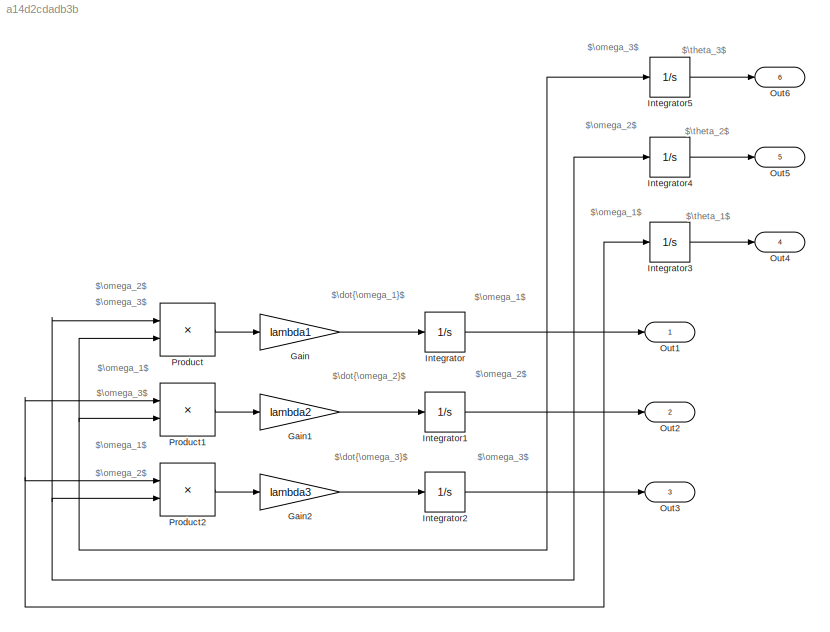
MODEL slx_a14d2cdadb3b
KIND model
CONFIG AbsTol = auto
CONFIG EnableMultiTasking = off
CONFIG FixedStep = 0.02
CONFIG MaxStep = auto
CONFIG MinStep = auto
CONFIG RelTol = 1e-3
CONFIG SampleTimeConstraint = Unconstrained
CONFIG SolverName = FixedStepAuto
CONFIG StartTime = 0.0
CONFIG StopTime = 14.0
BLOCK [Gain] Gain
  Gain = lambda1
BLOCK [Gain] Gain1
  Gain = lambda2
BLOCK [Gain] Gain2
  Gain = lambda3
BLOCK [Integrator] Integrator
  InitialCondition = omega0(1)
  Ports = [1, 1]
BLOCK [Integrator] Integrator1
  InitialCondition = omega0(2)
  Ports = [1, 1]
BLOCK [Integrator] Integrator2
  InitialCondition = omega0(3)
  Ports = [1, 1]
BLOCK [Integrator] Integrator3
  Ports = [1, 1]
BLOCK [Integrator] Integrator4
  Ports = [1, 1]
BLOCK [Integrator] Integrator5
  Ports = [1, 1]
BLOCK [Outport] Out1
  IconDisplay = Signal name
  SignalName = omega1
BLOCK [Outport] Out2
  IconDisplay = Signal name
  Port = 2
  SignalName = omega2
BLOCK [Outport] Out3
  IconDisplay = Signal name
  Port = 3
  SignalName = omega3
BLOCK [Outport] Out4
  IconDisplay = Signal name
  Port = 4
  SignalName = theta1
BLOCK [Outport] Out5
  IconDisplay = Signal name
  Port = 5
  SignalName = theta2
BLOCK [Outport] Out6
  IconDisplay = Signal name
  Port = 6
  SignalName = theta3
BLOCK [Product] Product
  Ports = [2, 1]
BLOCK [Product] Product1
  Ports = [2, 1]
BLOCK [Product] Product2
  Ports = [2, 1]
ANNOTATION (root): $\theta_1$
ANNOTATION (root): $\theta_2$
ANNOTATION (root): $\theta_3$
ANNOTATION (root): $\dot{\omega_1}$
ANNOTATION (root): $\dot{\omega_2}$
ANNOTATION (root): $\dot{\omega_3}$
ANNOTATION (root): $\omega_1$
ANNOTATION (root): $\omega_2$
ANNOTATION (root): $\omega_3$
LINE Gain1:1 -> Integrator1:1
LINE Gain2:1 -> Integrator2:1
LINE Gain:1 -> Integrator:1
NET Integrator1:1 -> Integrator4:1, Out2:1, Product2:2, Product:1
NET Integrator2:1 -> Integrator5:1, Out3:1, Product1:2, Product:2
LINE Integrator3:1 -> Out4:1
LINE Integrator4:1 -> Out5:1
LINE Integrator5:1 -> Out6:1
NET Integrator:1 -> Integrator3:1, Out1:1, Product1:1, Product2:1
LINE Product1:1 -> Gain1:1
LINE Product2:1 -> Gain2:1
LINE Product:1 -> Gain:1
note: NET lines group one-source signal fan-out (src -> all destinations, sorted); 1:1 wires keep LINE
